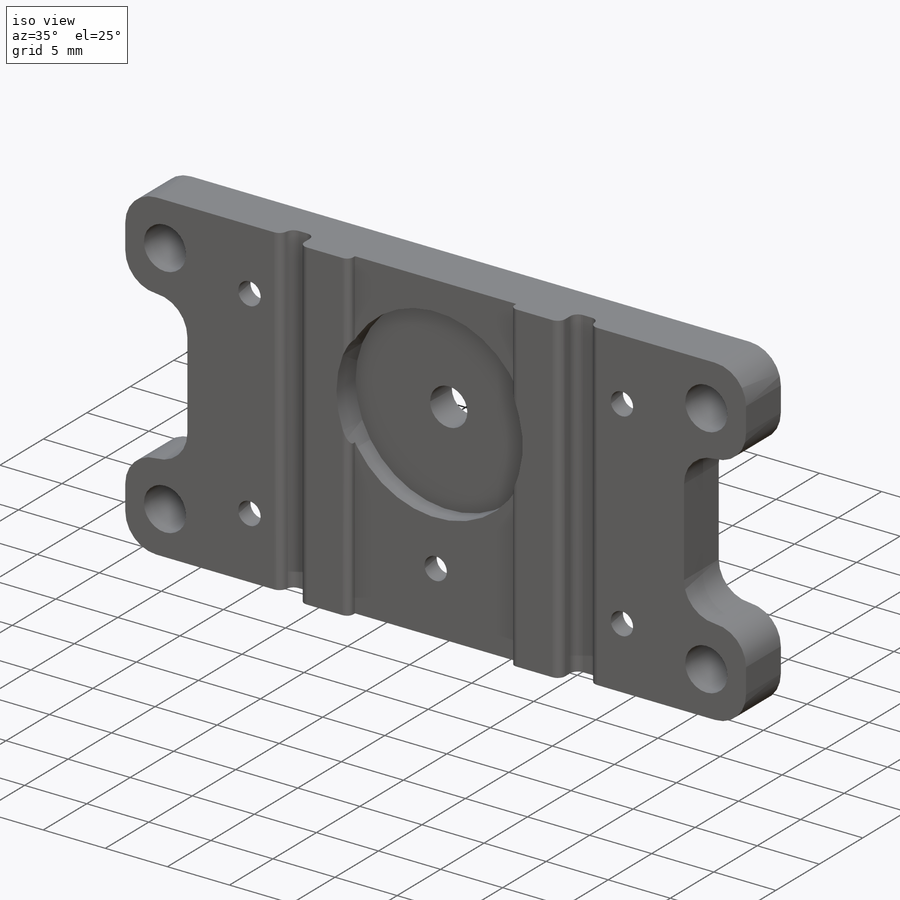
[diagram: iso view]
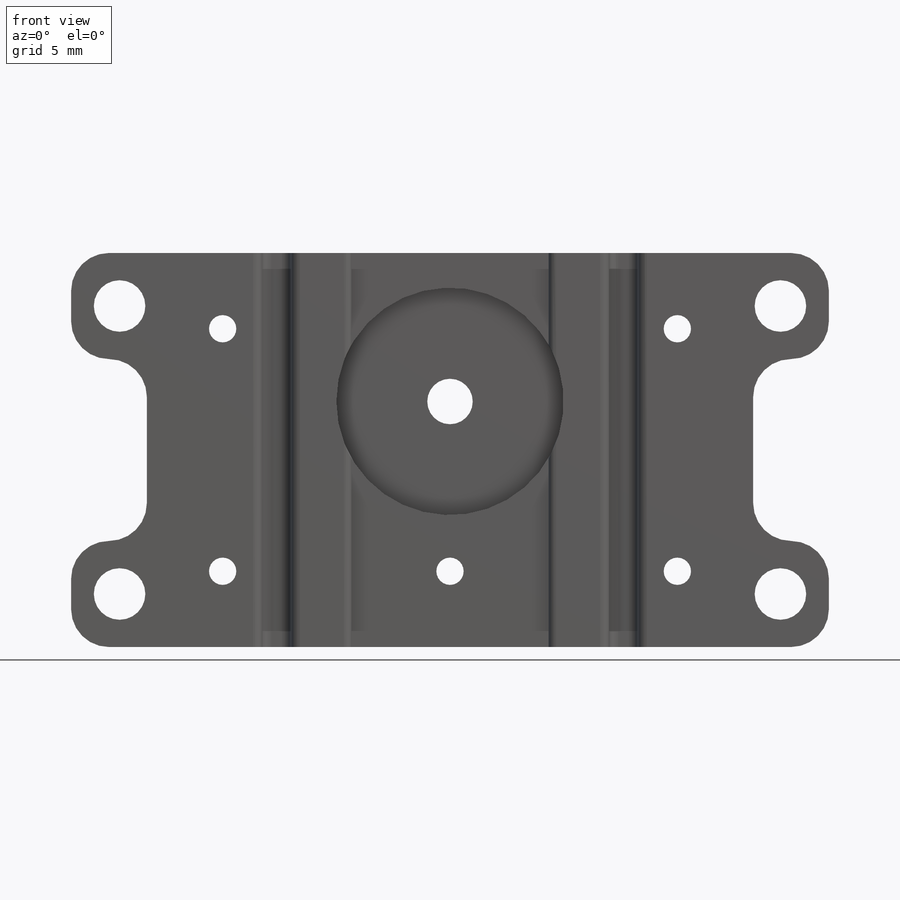
[diagram: front view]
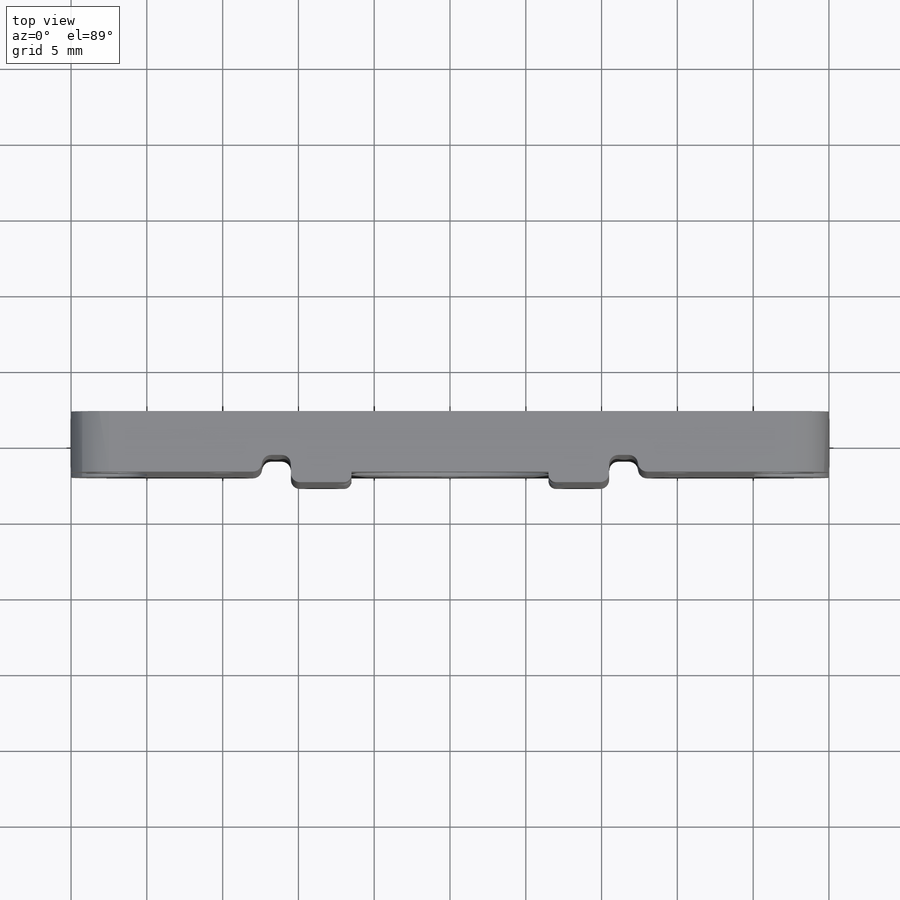
[diagram: top view]
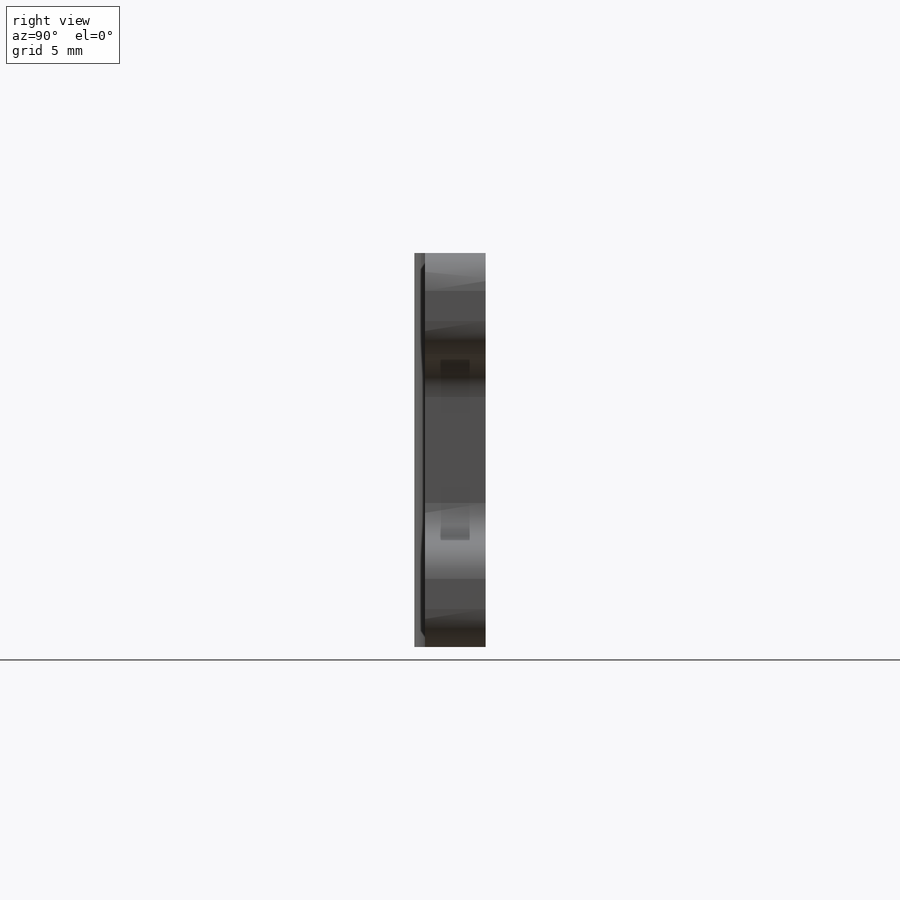
[diagram: right view]
SOLIDWORKS PART (.sldprt)
format: sldprt  version: not decoded by parser v0  size: 566,784 bytes
history: native  units: mm
features: sketch x9, fillet x7, cut_extrude x6, plane x3, extrude x3, chamfer x2, material x1, pattern_linear x1 (+10 scaffold rows collapsed)
feature tree (42):
  scaffold x10  (default folders/planes/origin — collapsed)
  material  "Nylon 101"
  plane  "Ebene vorne"
  plane  "Ebene oben"
  plane  "Ebene rechts"
  sketch  "body-s"  dims[c1.D7=1.8mm c1.D8=~2.954178mm c1.D10=~3.022113mm c1.D1=~59.959056mm c1.D2=~68.922898mm c2.D1=26.0mm c2.D2=40.0mm c2.D3=3.0mm c2.D4=3.0mm c2.D5=2.0mm c2.D6=2.0mm c2.D8=5.0mm c2.D9=5.0mm c2.D10=~9.157468mm c2.D11=0.0mm]
  extrude  "body"  Depth=4mm
  sketch  "cutting-s"  dims[c1.D1=7.0mm c1.D2=~5.625828mm c2.D1=31.8mm]
  cut_extrude  "cutting"  Depth=3mm
  sketch  "wing-s"  dims[c1.D1=3.4mm c1.D4=3.4mm c2.D1=3.4mm c2.D4=3.4mm c3.D1=~2.404615mm c3.D4=3.4mm c3.D7=3.4mm c4.D1=~7.642649mm c4.D2=5.0mm c4.D3=7.0mm c4.D4=~9.899495mm c5.D1=7.0mm c5.D4=3.8mm c6.D1=3.2mm c6.D5=~6.420636mm c6.D6=~4.554601mm c7.D5=5.0mm c7.D6=7.0mm c7.D7=~70.100366mm c7.D8=3.2mm]
  extrude  "wing"  Depth=4mm
  pattern_linear  "Lineares Muster2"  Count1=2 Count2=1 Spacing1=19mm Spacing2=10mm
  fillet  "Verrundung2"  Radius=2.5mm
  sketch  "glides-s"  dims[c1.D1=26.0mm c1.D2=~5.900393mm c2.D1=9.2mm c2.D2=3.5mm c2.D3=26.0mm c2.D4=~7.312453mm c3.D3=9.2mm c3.D4=3.5mm]
  extrude  "glides"  Depth=0.7mm
  sketch  "gear-h"  dims[D1=~52.254218mm D2=9.8mm]
  cut_extrude  "gearhole"  Depth=3mm
  sketch  "bore-s"  dims[c1.D1=~2.160496mm c1.D2=3.0mm c2.D1=9.8mm]
  cut_extrude  "Shaft-bore"  Depth=2mm
  chamfer  "Fase2"  Distance=3mm Angle=45deg
  chamfer  "Fase3"  Distance=3mm Angle=45deg
  sketch  "railcut"  dims[c1.D1=0.3mm c1.D2=0.3mm c1.D3=26.0mm c1.D4=~1.698684mm c2.D3=26.0mm c2.D4=~2.248005mm c3.D3=1.9mm c3.D4=1.9mm]
  cut_extrude  "rail-cut"  Depth=1.8mm
  sketch  "edge"  dims[c1.D1=26.0mm c1.D2=0.3mm c2.D1=26.0mm c2.D2=0.3mm]
  cut_extrude  "cut-edge"  Depth=0.7mm
  fillet  "Verrundung6"  Radius=0.6mm
  fillet  "Verrundung7"  Radius=0.6mm
  fillet  "Verrundung8"  Radius=0.6mm
  sketch  "glide-space"  dims[c1.D1=26.0mm c1.D2=~2.526156mm c2.D1=26.0mm c2.D2=3.2mm c3.D1=3.0mm c3.D2=26.0mm c3.D3=~1.952237mm c4.D2=3.0mm]
  cut_extrude  "glide-space-rack-spur"  Depth=0.7mm
  fillet  "Verrundung10"  Radius=0.5mm
  fillet  "Verrundung11"  Radius=0.5mm
  fillet  "Verrundung12"  Radius=0.5mm
decode coverage: 28 of 28 modeling features carry decoded parameters
note: ~ marks probable driven/reference dimensions
note: suppression state not decoded; provenance and decode notes live in map.json
